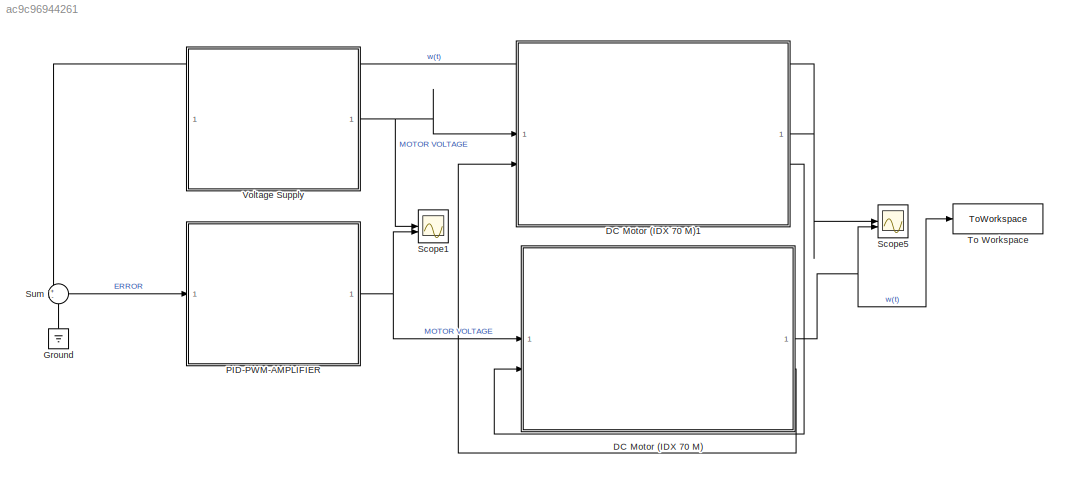
MODEL slx_ac9c96944261
KIND model
CONFIG AbsTol = auto
CONFIG EnableMultiTasking = off
CONFIG FixedStep = auto
CONFIG MaxStep = auto
CONFIG MinStep = auto
CONFIG RelTol = 1e-2
CONFIG SampleTimeConstraint = Unconstrained
CONFIG SolverName = VariableStepAuto
CONFIG StartTime = 0.0
CONFIG StopTime = 10
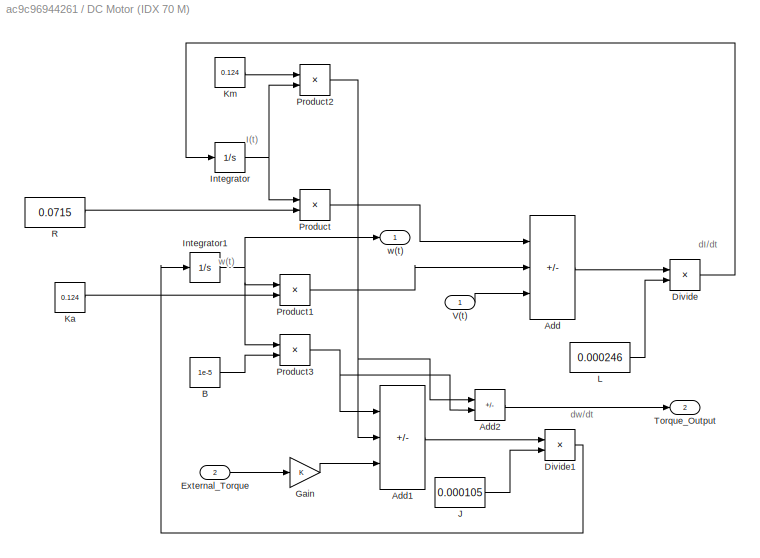
BLOCK [SubSystem] DC Motor (IDX 70 M)
BLOCK [Sum] DC Motor (IDX 70 M)/Add
  IconShape = rectangular
  Inputs = --+
BLOCK [Sum] DC Motor (IDX 70 M)/Add1
  IconShape = rectangular
  Inputs = -+-
BLOCK [Sum] DC Motor (IDX 70 M)/Add2
  IconShape = rectangular
  Inputs = +-
BLOCK [Constant] DC Motor (IDX 70 M)/B
  Value = 1e-5
BLOCK [Product] DC Motor (IDX 70 M)/Divide
  Inputs = */
BLOCK [Product] DC Motor (IDX 70 M)/Divide1
  Inputs = */
BLOCK [Inport] DC Motor (IDX 70 M)/External_Torque
  Port = 2
BLOCK [Gain] DC Motor (IDX 70 M)/Gain
BLOCK [Integrator] DC Motor (IDX 70 M)/Integrator
BLOCK [Integrator] DC Motor (IDX 70 M)/Integrator1
  LimitOutput = on
  LowerSaturationLimit = -419
  UpperSaturationLimit = 419
BLOCK [Constant] DC Motor (IDX 70 M)/J
  Value = 0.000105
BLOCK [Constant] DC Motor (IDX 70 M)/Ka
  Value = 0.124
BLOCK [Constant] DC Motor (IDX 70 M)/Km
  Value = 0.124
BLOCK [Constant] DC Motor (IDX 70 M)/L
  Value = 0.000246
BLOCK [Product] DC Motor (IDX 70 M)/Product
BLOCK [Product] DC Motor (IDX 70 M)/Product1
BLOCK [Product] DC Motor (IDX 70 M)/Product2
BLOCK [Product] DC Motor (IDX 70 M)/Product3
BLOCK [Constant] DC Motor (IDX 70 M)/R
  Value = 0.0715
BLOCK [Outport] DC Motor (IDX 70 M)/Torque_Output
  Port = 2
BLOCK [Inport] DC Motor (IDX 70 M)/V(t)
BLOCK [Outport] DC Motor (IDX 70 M)/w(t)
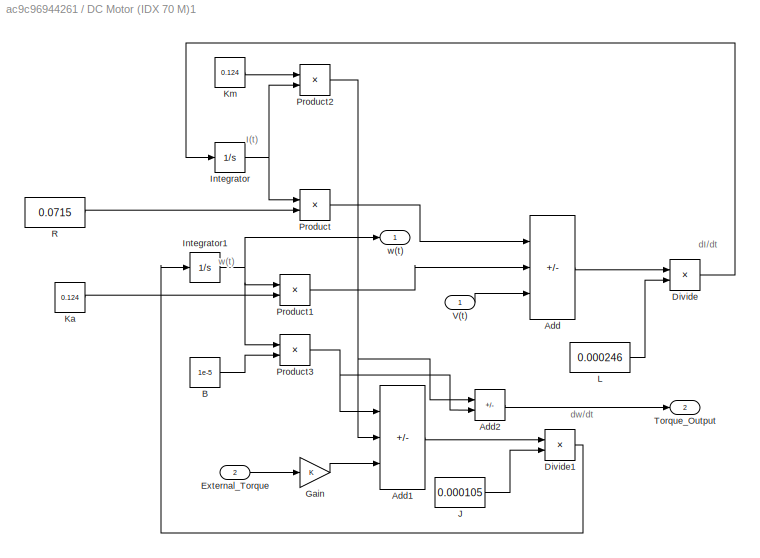
BLOCK [SubSystem] DC Motor (IDX 70 M)1
BLOCK [Sum] DC Motor (IDX 70 M)1/Add
  IconShape = rectangular
  Inputs = --+
BLOCK [Sum] DC Motor (IDX 70 M)1/Add1
  IconShape = rectangular
  Inputs = -+-
BLOCK [Sum] DC Motor (IDX 70 M)1/Add2
  IconShape = rectangular
  Inputs = +-
BLOCK [Constant] DC Motor (IDX 70 M)1/B
  Value = 1e-5
BLOCK [Product] DC Motor (IDX 70 M)1/Divide
  Inputs = */
BLOCK [Product] DC Motor (IDX 70 M)1/Divide1
  Inputs = */
BLOCK [Inport] DC Motor (IDX 70 M)1/External_Torque
  Port = 2
BLOCK [Gain] DC Motor (IDX 70 M)1/Gain
BLOCK [Integrator] DC Motor (IDX 70 M)1/Integrator
BLOCK [Integrator] DC Motor (IDX 70 M)1/Integrator1
  LimitOutput = on
  LowerSaturationLimit = -419
  UpperSaturationLimit = 419
BLOCK [Constant] DC Motor (IDX 70 M)1/J
  Value = 0.000105
BLOCK [Constant] DC Motor (IDX 70 M)1/Ka
  Value = 0.124
BLOCK [Constant] DC Motor (IDX 70 M)1/Km
  Value = 0.124
BLOCK [Constant] DC Motor (IDX 70 M)1/L
  Value = 0.000246
BLOCK [Product] DC Motor (IDX 70 M)1/Product
BLOCK [Product] DC Motor (IDX 70 M)1/Product1
BLOCK [Product] DC Motor (IDX 70 M)1/Product2
BLOCK [Product] DC Motor (IDX 70 M)1/Product3
BLOCK [Constant] DC Motor (IDX 70 M)1/R
  Value = 0.0715
BLOCK [Outport] DC Motor (IDX 70 M)1/Torque_Output
  Port = 2
BLOCK [Inport] DC Motor (IDX 70 M)1/V(t)
BLOCK [Outport] DC Motor (IDX 70 M)1/w(t)
BLOCK [Ground] Ground
  NameLocation = right
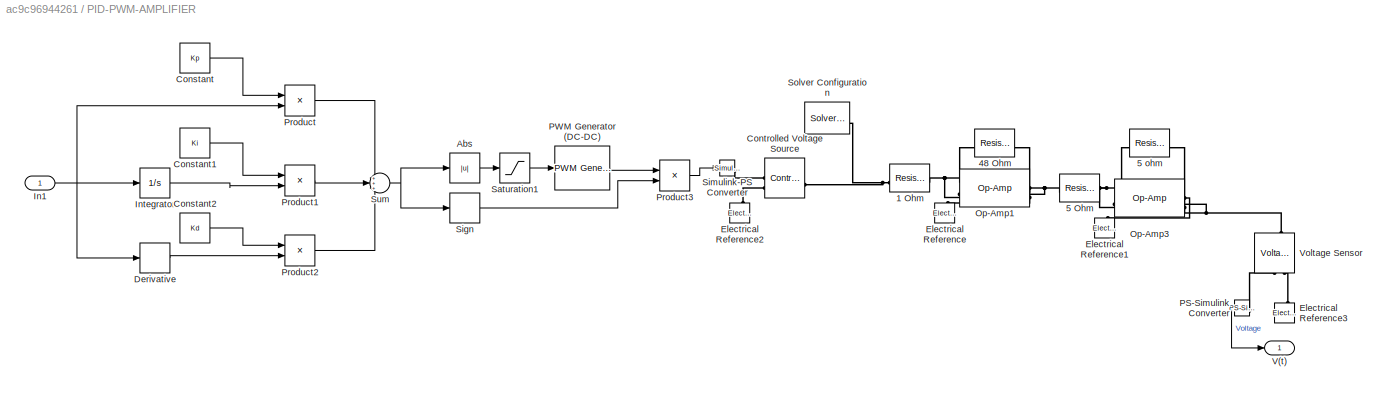
BLOCK [SubSystem] PID-PWM-AMPLIFIER
BLOCK [Reference] PID-PWM-AMPLIFIER/1 Ohm  REF=fl_lib/Electrical/Electrical Elements/Resistor
  SourceBlock = fl_lib/Electrical/Electrical Elements/Resistor
  SourceType = Resistor
BLOCK [Reference] PID-PWM-AMPLIFIER/48 Ohm  REF=fl_lib/Electrical/Electrical Elements/Resistor
  SourceBlock = fl_lib/Electrical/Electrical Elements/Resistor
  SourceType = Resistor
BLOCK [Reference] PID-PWM-AMPLIFIER/5 Ohm  REF=fl_lib/Electrical/Electrical Elements/Resistor
  SourceBlock = fl_lib/Electrical/Electrical Elements/Resistor
  SourceType = Resistor
BLOCK [Reference] PID-PWM-AMPLIFIER/5 ohm  REF=fl_lib/Electrical/Electrical Elements/Resistor
  SourceBlock = fl_lib/Electrical/Electrical Elements/Resistor
  SourceType = Resistor
BLOCK [Abs] PID-PWM-AMPLIFIER/Abs
  SaturateOnIntegerOverflow = off
BLOCK [Constant] PID-PWM-AMPLIFIER/Constant
  Value = Kp
BLOCK [Constant] PID-PWM-AMPLIFIER/Constant1
  Value = Ki
BLOCK [Constant] PID-PWM-AMPLIFIER/Constant2
  Value = Kd
BLOCK [Reference] PID-PWM-AMPLIFIER/Controlled Voltage Source  REF=fl_lib/Electrical/Electrical Sources/Controlled Voltage
Source
  SourceBlock = fl_lib/Electrical/Electrical Sources/Controlled Voltage\nSource
  SourceType = Controlled Voltage\nSource
BLOCK [Derivative] PID-PWM-AMPLIFIER/Derivative
BLOCK [Reference] PID-PWM-AMPLIFIER/Electrical Reference  REF=fl_lib/Electrical/Electrical Elements/Electrical Reference
  NameLocation = right
  SourceBlock = fl_lib/Electrical/Electrical Elements/Electrical Reference
  SourceType = Electrical Reference
BLOCK [Reference] PID-PWM-AMPLIFIER/Electrical Reference1  REF=fl_lib/Electrical/Electrical Elements/Electrical Reference
  NameLocation = right
  SourceBlock = fl_lib/Electrical/Electrical Elements/Electrical Reference
  SourceType = Electrical Reference
BLOCK [Reference] PID-PWM-AMPLIFIER/Electrical Reference2  REF=fl_lib/Electrical/Electrical Elements/Electrical Reference
  NameLocation = right
  SourceBlock = fl_lib/Electrical/Electrical Elements/Electrical Reference
  SourceType = Electrical Reference
BLOCK [Reference] PID-PWM-AMPLIFIER/Electrical Reference3  REF=fl_lib/Electrical/Electrical Elements/Electrical Reference
  NameLocation = right
  SourceBlock = fl_lib/Electrical/Electrical Elements/Electrical Reference
  SourceType = Electrical Reference
BLOCK [Inport] PID-PWM-AMPLIFIER/In1
BLOCK [Integrator] PID-PWM-AMPLIFIER/Integrator
BLOCK [Reference] PID-PWM-AMPLIFIER/Op-Amp1  REF=fl_lib/Electrical/Electrical Elements/Op-Amp
  SourceBlock = fl_lib/Electrical/Electrical Elements/Op-Amp
  SourceType = Op-Amp
BLOCK [Reference] PID-PWM-AMPLIFIER/Op-Amp3  REF=fl_lib/Electrical/Electrical Elements/Op-Amp
  NameLocation = top
  SourceBlock = fl_lib/Electrical/Electrical Elements/Op-Amp
  SourceType = Op-Amp
BLOCK [Reference] PID-PWM-AMPLIFIER/PS-Simulink Converter  REF=nesl_utility/PS-Simulink
Converter
  NameLocation = top
  SourceBlock = nesl_utility/PS-Simulink\nConverter
  SourceType = PS-Simulink\nConverter
BLOCK [Reference] PID-PWM-AMPLIFIER/PWM Generator (DC-DC)  REF=spsPWMGeneratorDCDCLib/PWM Generator
(DC-DC)
  SourceBlock = spsPWMGeneratorDCDCLib/PWM Generator\n(DC-DC)
  SourceType = PWM Generator (DC-DC)
BLOCK [Product] PID-PWM-AMPLIFIER/Product
BLOCK [Product] PID-PWM-AMPLIFIER/Product1
BLOCK [Product] PID-PWM-AMPLIFIER/Product2
BLOCK [Product] PID-PWM-AMPLIFIER/Product3
BLOCK [Saturate] PID-PWM-AMPLIFIER/Saturation1
  LowerLimit = 0
  UpperLimit = 1
BLOCK [Signum] PID-PWM-AMPLIFIER/Sign
BLOCK [Reference] PID-PWM-AMPLIFIER/Simulink-PS Converter  REF=nesl_utility/Simulink-PS
Converter
  SourceBlock = nesl_utility/Simulink-PS\nConverter
  SourceType = Simulink-PS\nConverter
BLOCK [Reference] PID-PWM-AMPLIFIER/Solver Configuration  REF=nesl_utility/Solver
Configuration
  SourceBlock = nesl_utility/Solver\nConfiguration
  SourceType = Solver\nConfiguration
BLOCK [Sum] PID-PWM-AMPLIFIER/Sum
  Inputs = +++
BLOCK [Outport] PID-PWM-AMPLIFIER/V(t)
BLOCK [Reference] PID-PWM-AMPLIFIER/Voltage Sensor  REF=fl_lib/Electrical/Electrical Sensors/Voltage Sensor
  NameLocation = right
  SourceBlock = fl_lib/Electrical/Electrical Sensors/Voltage Sensor
  SourceType = Voltage Sensor
BLOCK [Scope] Scope1
  Floating = off
  NumInputPorts = 2
  ScopeSpecificationString = Simulink.scopes.TimeScopeBlockCfg('CurrentConfiguration', extmgr.ConfigurationSet(extmgr.Configuration('Core','General UI',true),extmgr.Configuration('Core','Source UI',true),extmgr.Configuration('Sources','WiredSimulink',true,'DataLoggingVariableName','ScopeData1'),extmgr.Configuration('Visuals','Time Domain',true,'SerializedDisplays',{struct('MinYLimReal','-6.00000','MaxYLimReal','54.00000','YLa...<+2189ch>
BLOCK [Scope] Scope5
  Floating = off
  NumInputPorts = 2
  ScopeSpecificationString = Simulink.scopes.TimeScopeBlockCfg('CurrentConfiguration', extmgr.ConfigurationSet(extmgr.Configuration('Core','General UI',true),extmgr.Configuration('Core','Source UI',true),extmgr.Configuration('Sources','WiredSimulink',true,'DataLoggingVariableName','ScopeData1'),extmgr.Configuration('Visuals','Time Domain',true,'SerializedDisplays',{struct('MinYLimReal','-0.02511','MaxYLimReal','0.07671','YLab...<+2218ch>
BLOCK [Sum] Sum
  Inputs = +-
BLOCK [ToWorkspace] To Workspace
  FixptAsFi = on
  MaxDataPoints = inf
  SampleTime = -1
  SaveFormat = Timeseries
  VariableName = simout
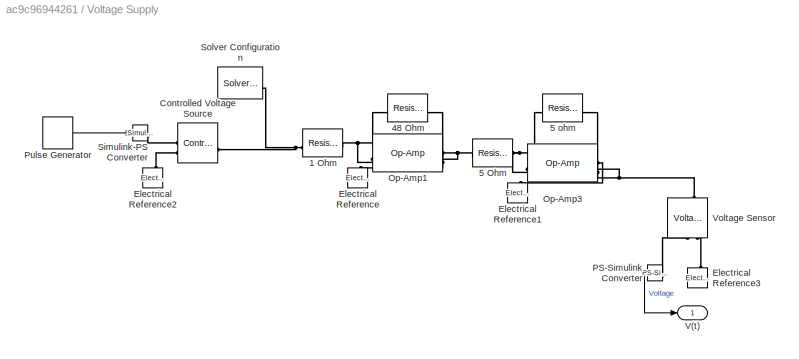
BLOCK [SubSystem] Voltage Supply
BLOCK [Reference] Voltage Supply/1 Ohm  REF=fl_lib/Electrical/Electrical Elements/Resistor
  SourceBlock = fl_lib/Electrical/Electrical Elements/Resistor
  SourceType = Resistor
BLOCK [Reference] Voltage Supply/48 Ohm  REF=fl_lib/Electrical/Electrical Elements/Resistor
  SourceBlock = fl_lib/Electrical/Electrical Elements/Resistor
  SourceType = Resistor
BLOCK [Reference] Voltage Supply/5 Ohm  REF=fl_lib/Electrical/Electrical Elements/Resistor
  SourceBlock = fl_lib/Electrical/Electrical Elements/Resistor
  SourceType = Resistor
BLOCK [Reference] Voltage Supply/5 ohm  REF=fl_lib/Electrical/Electrical Elements/Resistor
  SourceBlock = fl_lib/Electrical/Electrical Elements/Resistor
  SourceType = Resistor
BLOCK [Reference] Voltage Supply/Controlled Voltage Source  REF=fl_lib/Electrical/Electrical Sources/Controlled Voltage
Source
  SourceBlock = fl_lib/Electrical/Electrical Sources/Controlled Voltage\nSource
  SourceType = Controlled Voltage\nSource
BLOCK [Reference] Voltage Supply/Electrical Reference  REF=fl_lib/Electrical/Electrical Elements/Electrical Reference
  NameLocation = right
  SourceBlock = fl_lib/Electrical/Electrical Elements/Electrical Reference
  SourceType = Electrical Reference
BLOCK [Reference] Voltage Supply/Electrical Reference1  REF=fl_lib/Electrical/Electrical Elements/Electrical Reference
  NameLocation = right
  SourceBlock = fl_lib/Electrical/Electrical Elements/Electrical Reference
  SourceType = Electrical Reference
BLOCK [Reference] Voltage Supply/Electrical Reference2  REF=fl_lib/Electrical/Electrical Elements/Electrical Reference
  NameLocation = right
  SourceBlock = fl_lib/Electrical/Electrical Elements/Electrical Reference
  SourceType = Electrical Reference
BLOCK [Reference] Voltage Supply/Electrical Reference3  REF=fl_lib/Electrical/Electrical Elements/Electrical Reference
  NameLocation = right
  SourceBlock = fl_lib/Electrical/Electrical Elements/Electrical Reference
  SourceType = Electrical Reference
BLOCK [Reference] Voltage Supply/Op-Amp1  REF=fl_lib/Electrical/Electrical Elements/Op-Amp
  SourceBlock = fl_lib/Electrical/Electrical Elements/Op-Amp
  SourceType = Op-Amp
BLOCK [Reference] Voltage Supply/Op-Amp3  REF=fl_lib/Electrical/Electrical Elements/Op-Amp
  NameLocation = top
  SourceBlock = fl_lib/Electrical/Electrical Elements/Op-Amp
  SourceType = Op-Amp
BLOCK [Reference] Voltage Supply/PS-Simulink Converter  REF=nesl_utility/PS-Simulink
Converter
  NameLocation = top
  SourceBlock = nesl_utility/PS-Simulink\nConverter
  SourceType = PS-Simulink\nConverter
BLOCK [DiscretePulseGenerator] Voltage Supply/Pulse Generator
  Period = 1/50000
  PulseType = Time based
  PulseWidth = 99
BLOCK [Reference] Voltage Supply/Simulink-PS Converter  REF=nesl_utility/Simulink-PS
Converter
  SourceBlock = nesl_utility/Simulink-PS\nConverter
  SourceType = Simulink-PS\nConverter
BLOCK [Reference] Voltage Supply/Solver Configuration  REF=nesl_utility/Solver
Configuration
  SourceBlock = nesl_utility/Solver\nConfiguration
  SourceType = Solver\nConfiguration
BLOCK [Outport] Voltage Supply/V(t)
BLOCK [Reference] Voltage Supply/Voltage Sensor  REF=fl_lib/Electrical/Electrical Sensors/Voltage Sensor
  NameLocation = right
  SourceBlock = fl_lib/Electrical/Electrical Sensors/Voltage Sensor
  SourceType = Voltage Sensor
ANNOTATION DC Motor (IDX 70 M): I(t)
ANNOTATION DC Motor (IDX 70 M): dI/dt
ANNOTATION DC Motor (IDX 70 M): dw/dt
ANNOTATION DC Motor (IDX 70 M): w(t)
ANNOTATION DC Motor (IDX 70 M)1: I(t)
ANNOTATION DC Motor (IDX 70 M)1: dI/dt
ANNOTATION DC Motor (IDX 70 M)1: dw/dt
ANNOTATION DC Motor (IDX 70 M)1: w(t)
LINE DC Motor (IDX 70 M)/Add1:1 -> DC Motor (IDX 70 M)/Divide1:1
LINE DC Motor (IDX 70 M)/Add2:1 -> DC Motor (IDX 70 M)/Torque_Output:1
LINE DC Motor (IDX 70 M)/Add:1 -> DC Motor (IDX 70 M)/Divide:1
LINE DC Motor (IDX 70 M)/B:1 -> DC Motor (IDX 70 M)/Product3:2
LINE DC Motor (IDX 70 M)/Divide1:1 -> DC Motor (IDX 70 M)/Integrator1:1
LINE DC Motor (IDX 70 M)/Divide:1 -> DC Motor (IDX 70 M)/Integrator:1
LINE DC Motor (IDX 70 M)/External_Torque:1 -> DC Motor (IDX 70 M)/Gain:1
LINE DC Motor (IDX 70 M)/Gain:1 -> DC Motor (IDX 70 M)/Add1:3
NET DC Motor (IDX 70 M)/Integrator1:1 -> DC Motor (IDX 70 M)/Product1:1, DC Motor (IDX 70 M)/Product3:1, DC Motor (IDX 70 M)/w(t):1
NET DC Motor (IDX 70 M)/Integrator:1 -> DC Motor (IDX 70 M)/Product2:2, DC Motor (IDX 70 M)/Product:1
LINE DC Motor (IDX 70 M)/J:1 -> DC Motor (IDX 70 M)/Divide1:2
LINE DC Motor (IDX 70 M)/Ka:1 -> DC Motor (IDX 70 M)/Product1:2
LINE DC Motor (IDX 70 M)/Km:1 -> DC Motor (IDX 70 M)/Product2:1
LINE DC Motor (IDX 70 M)/L:1 -> DC Motor (IDX 70 M)/Divide:2
LINE DC Motor (IDX 70 M)/Product1:1 -> DC Motor (IDX 70 M)/Add:2
NET DC Motor (IDX 70 M)/Product2:1 -> DC Motor (IDX 70 M)/Add1:2, DC Motor (IDX 70 M)/Add2:1
NET DC Motor (IDX 70 M)/Product3:1 -> DC Motor (IDX 70 M)/Add1:1, DC Motor (IDX 70 M)/Add2:2
LINE DC Motor (IDX 70 M)/Product:1 -> DC Motor (IDX 70 M)/Add:1
LINE DC Motor (IDX 70 M)/R:1 -> DC Motor (IDX 70 M)/Product:2
LINE DC Motor (IDX 70 M)/V(t):1 -> DC Motor (IDX 70 M)/Add:3
LINE DC Motor (IDX 70 M)1/Add1:1 -> DC Motor (IDX 70 M)1/Divide1:1
LINE DC Motor (IDX 70 M)1/Add2:1 -> DC Motor (IDX 70 M)1/Torque_Output:1
LINE DC Motor (IDX 70 M)1/Add:1 -> DC Motor (IDX 70 M)1/Divide:1
LINE DC Motor (IDX 70 M)1/B:1 -> DC Motor (IDX 70 M)1/Product3:2
LINE DC Motor (IDX 70 M)1/Divide1:1 -> DC Motor (IDX 70 M)1/Integrator1:1
LINE DC Motor (IDX 70 M)1/Divide:1 -> DC Motor (IDX 70 M)1/Integrator:1
LINE DC Motor (IDX 70 M)1/External_Torque:1 -> DC Motor (IDX 70 M)1/Gain:1
LINE DC Motor (IDX 70 M)1/Gain:1 -> DC Motor (IDX 70 M)1/Add1:3
NET DC Motor (IDX 70 M)1/Integrator1:1 -> DC Motor (IDX 70 M)1/Product1:1, DC Motor (IDX 70 M)1/Product3:1, DC Motor (IDX 70 M)1/w(t):1
NET DC Motor (IDX 70 M)1/Integrator:1 -> DC Motor (IDX 70 M)1/Product2:2, DC Motor (IDX 70 M)1/Product:1
LINE DC Motor (IDX 70 M)1/J:1 -> DC Motor (IDX 70 M)1/Divide1:2
LINE DC Motor (IDX 70 M)1/Ka:1 -> DC Motor (IDX 70 M)1/Product1:2
LINE DC Motor (IDX 70 M)1/Km:1 -> DC Motor (IDX 70 M)1/Product2:1
LINE DC Motor (IDX 70 M)1/L:1 -> DC Motor (IDX 70 M)1/Divide:2
LINE DC Motor (IDX 70 M)1/Product1:1 -> DC Motor (IDX 70 M)1/Add:2
NET DC Motor (IDX 70 M)1/Product2:1 -> DC Motor (IDX 70 M)1/Add1:2, DC Motor (IDX 70 M)1/Add2:1
NET DC Motor (IDX 70 M)1/Product3:1 -> DC Motor (IDX 70 M)1/Add1:1, DC Motor (IDX 70 M)1/Add2:2
LINE DC Motor (IDX 70 M)1/Product:1 -> DC Motor (IDX 70 M)1/Add:1
LINE DC Motor (IDX 70 M)1/R:1 -> DC Motor (IDX 70 M)1/Product:2
LINE DC Motor (IDX 70 M)1/V(t):1 -> DC Motor (IDX 70 M)1/Add:3
NET DC Motor (IDX 70 M)1:1 -> Scope5:1, Sum:1
LINE DC Motor (IDX 70 M)1:2 -> DC Motor (IDX 70 M):2
NET DC Motor (IDX 70 M):1 -> Scope5:2, To Workspace:1
LINE DC Motor (IDX 70 M):2 -> DC Motor (IDX 70 M)1:2
LINE Ground:1 -> Sum:2
LINE PID-PWM-AMPLIFIER/Abs:1 -> PID-PWM-AMPLIFIER/Saturation1:1
LINE PID-PWM-AMPLIFIER/Constant1:1 -> PID-PWM-AMPLIFIER/Product1:1
LINE PID-PWM-AMPLIFIER/Constant2:1 -> PID-PWM-AMPLIFIER/Product2:1
LINE PID-PWM-AMPLIFIER/Constant:1 -> PID-PWM-AMPLIFIER/Product:1
LINE PID-PWM-AMPLIFIER/Derivative:1 -> PID-PWM-AMPLIFIER/Product2:2
NET PID-PWM-AMPLIFIER/In1:1 -> PID-PWM-AMPLIFIER/Derivative:1, PID-PWM-AMPLIFIER/Integrator:1, PID-PWM-AMPLIFIER/Product:2
LINE PID-PWM-AMPLIFIER/Integrator:1 -> PID-PWM-AMPLIFIER/Product1:2
LINE PID-PWM-AMPLIFIER/PS-Simulink Converter:1 -> PID-PWM-AMPLIFIER/V(t):1
LINE PID-PWM-AMPLIFIER/PWM Generator (DC-DC):1 -> PID-PWM-AMPLIFIER/Product3:1
LINE PID-PWM-AMPLIFIER/Product1:1 -> PID-PWM-AMPLIFIER/Sum:2
LINE PID-PWM-AMPLIFIER/Product2:1 -> PID-PWM-AMPLIFIER/Sum:3
LINE PID-PWM-AMPLIFIER/Product3:1 -> PID-PWM-AMPLIFIER/Simulink-PS Converter:1
LINE PID-PWM-AMPLIFIER/Product:1 -> PID-PWM-AMPLIFIER/Sum:1
LINE PID-PWM-AMPLIFIER/Saturation1:1 -> PID-PWM-AMPLIFIER/PWM Generator (DC-DC):1
LINE PID-PWM-AMPLIFIER/Sign:1 -> PID-PWM-AMPLIFIER/Product3:2
NET PID-PWM-AMPLIFIER/Sum:1 -> PID-PWM-AMPLIFIER/Abs:1, PID-PWM-AMPLIFIER/Sign:1
NET PID-PWM-AMPLIFIER:1 -> DC Motor (IDX 70 M):1, Scope1:2
LINE Sum:1 -> PID-PWM-AMPLIFIER:1
LINE Voltage Supply/PS-Simulink Converter:1 -> Voltage Supply/V(t):1
LINE Voltage Supply/Pulse Generator:1 -> Voltage Supply/Simulink-PS Converter:1
NET Voltage Supply:1 -> DC Motor (IDX 70 M)1:1, Scope1:1
PNET net1: PID-PWM-AMPLIFIER/1 Ohm:LConn1 -- PID-PWM-AMPLIFIER/Controlled Voltage Source:LConn1 -- PID-PWM-AMPLIFIER/Solver Configuration:RConn1
PNET net2: PID-PWM-AMPLIFIER/1 Ohm:RConn1 -- PID-PWM-AMPLIFIER/48 Ohm:LConn1 -- PID-PWM-AMPLIFIER/Op-Amp1:LConn2
PNET net3: PID-PWM-AMPLIFIER/48 Ohm:RConn1 -- PID-PWM-AMPLIFIER/5 Ohm:LConn1 -- PID-PWM-AMPLIFIER/Op-Amp1:RConn1
PNET net4: PID-PWM-AMPLIFIER/5 Ohm:RConn1 -- PID-PWM-AMPLIFIER/5 ohm:LConn1 -- PID-PWM-AMPLIFIER/Op-Amp3:LConn2
PNET net5: PID-PWM-AMPLIFIER/5 ohm:RConn1 -- PID-PWM-AMPLIFIER/Op-Amp3:RConn1 -- PID-PWM-AMPLIFIER/Voltage Sensor:LConn1
PLINE PID-PWM-AMPLIFIER/Controlled Voltage Source:RConn1 -- PID-PWM-AMPLIFIER/Simulink-PS Converter:RConn1
PLINE PID-PWM-AMPLIFIER/Controlled Voltage Source:RConn2 -- PID-PWM-AMPLIFIER/Electrical Reference2:LConn1
PLINE PID-PWM-AMPLIFIER/Electrical Reference1:LConn1 -- PID-PWM-AMPLIFIER/Op-Amp3:LConn1
PLINE PID-PWM-AMPLIFIER/Electrical Reference3:LConn1 -- PID-PWM-AMPLIFIER/Voltage Sensor:RConn2
PLINE PID-PWM-AMPLIFIER/Electrical Reference:LConn1 -- PID-PWM-AMPLIFIER/Op-Amp1:LConn1
PLINE PID-PWM-AMPLIFIER/PS-Simulink Converter:LConn1 -- PID-PWM-AMPLIFIER/Voltage Sensor:RConn1
PNET net6: Voltage Supply/1 Ohm:LConn1 -- Voltage Supply/Controlled Voltage Source:LConn1 -- Voltage Supply/Solver Configuration:RConn1
PNET net7: Voltage Supply/1 Ohm:RConn1 -- Voltage Supply/48 Ohm:LConn1 -- Voltage Supply/Op-Amp1:LConn2
PNET net8: Voltage Supply/48 Ohm:RConn1 -- Voltage Supply/5 Ohm:LConn1 -- Voltage Supply/Op-Amp1:RConn1
PNET net9: Voltage Supply/5 Ohm:RConn1 -- Voltage Supply/5 ohm:LConn1 -- Voltage Supply/Op-Amp3:LConn2
PNET net10: Voltage Supply/5 ohm:RConn1 -- Voltage Supply/Op-Amp3:RConn1 -- Voltage Supply/Voltage Sensor:LConn1
PLINE Voltage Supply/Controlled Voltage Source:RConn1 -- Voltage Supply/Simulink-PS Converter:RConn1
PLINE Voltage Supply/Controlled Voltage Source:RConn2 -- Voltage Supply/Electrical Reference2:LConn1
PLINE Voltage Supply/Electrical Reference1:LConn1 -- Voltage Supply/Op-Amp3:LConn1
PLINE Voltage Supply/Electrical Reference3:LConn1 -- Voltage Supply/Voltage Sensor:RConn2
PLINE Voltage Supply/Electrical Reference:LConn1 -- Voltage Supply/Op-Amp1:LConn1
PLINE Voltage Supply/PS-Simulink Converter:LConn1 -- Voltage Supply/Voltage Sensor:RConn1
note: NET lines group one-source signal fan-out (src -> all destinations, sorted); 1:1 wires keep LINE; PNET lines group multi-terminal physical nets as a canonical sorted terminal list (undirected conserving connections); 2-terminal nets keep the pairwise PLINE form
